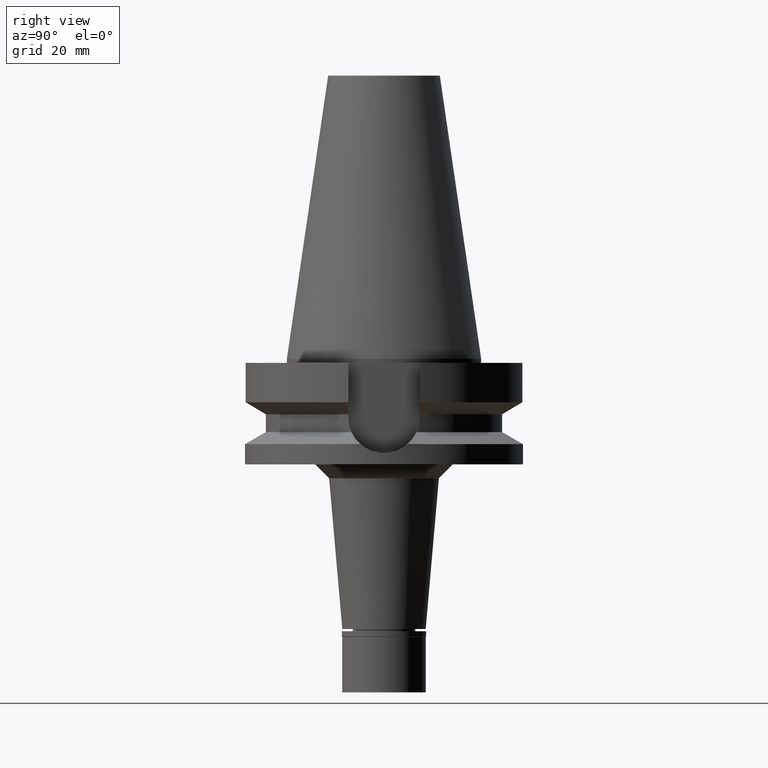
[diagram: clean part render]
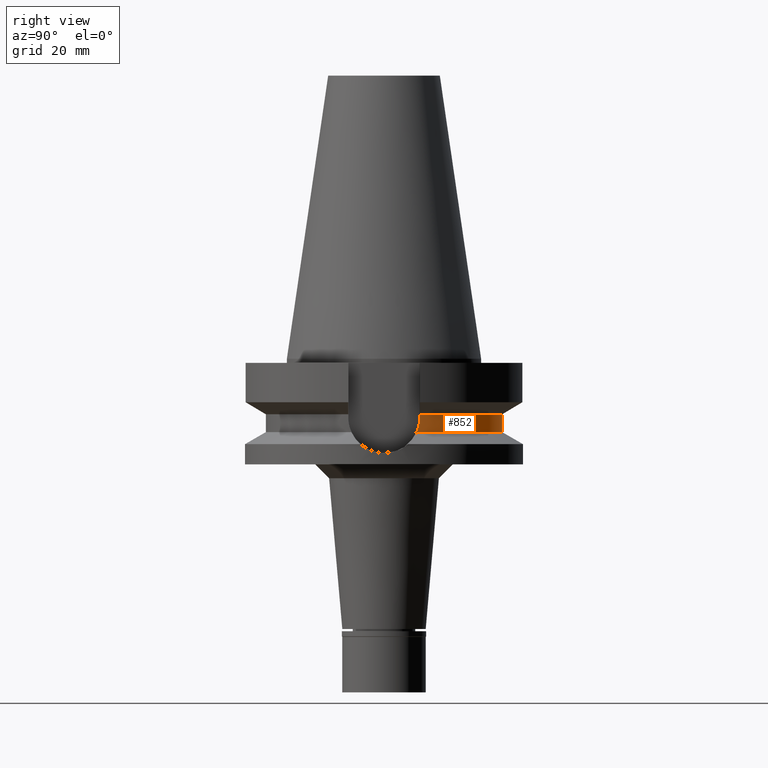
[diagram: same view with one face highlighted and labeled with its STEP entity id]
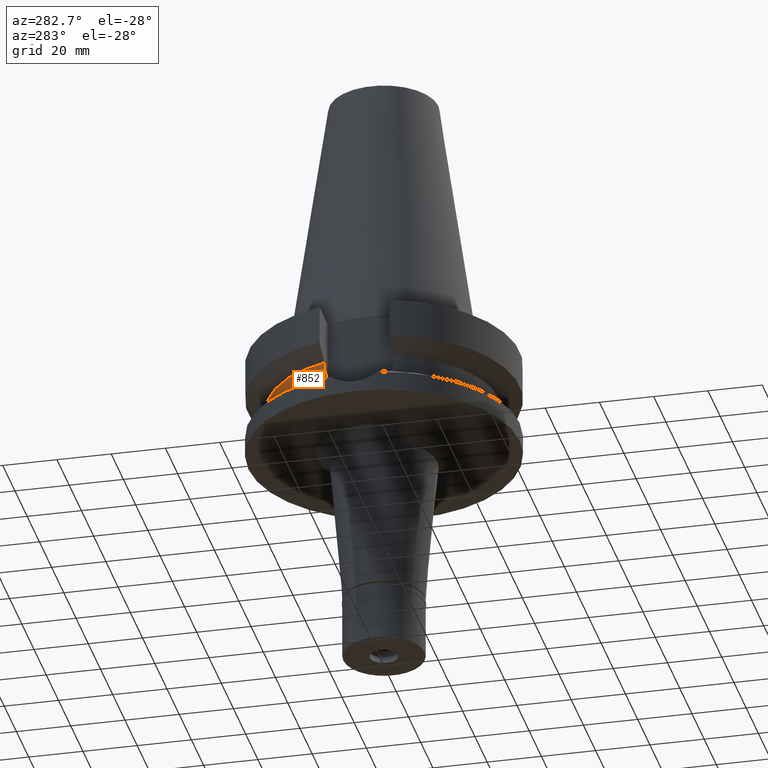
[diagram: same view with one face highlighted and labeled with its STEP entity id]
A machine part, right view. The second image highlights one B-rep face of the part: STEP entity #852.
A second angle (auxiliary view) of the same face is appended — the face is thin or edge-on in the first view.
In plain terms, the highlighted cylindrical surface (partial cylindrical patch) has radius 42.5 mm, axis along (0, 0, -1).
Its self-contained STEP definition (entity closure, byte-faithful):
#5 = CARTESIAN_POINT ( 'NONE',  ( -40.59736864107517107, 12.57412283048128643, -23.79851909554893652 ) ) ;
#31 = CARTESIAN_POINT ( 'NONE',  ( 40.51083188481999997, 12.84999999999999964, -21.14999999999999858 ) ) ;
#163 = B_SPLINE_CURVE_WITH_KNOTS ( 'NONE', 3,
 ( #2923, #245, #2434, #1686, #470, #2711, #732, #228, #1721, #2985, #5, #979, #2235, #490 ),
 .UNSPECIFIED., .F., .F.,
 ( 4, 2, 2, 1, 1, 2, 2, 4 ),
 ( 0.0000000000000000000, 0.2500000000000000000, 0.3750000000000008327, 0.4375000000000012212, 0.4687500000000014988, 0.4843750000000016653, 0.5000000000000017764, 1.000000000000000000 ),
 .UNSPECIFIED. ) ;
#166 = CIRCLE ( 'NONE', #634, 42.50000000000000000 ) ;
#172 = CARTESIAN_POINT ( 'NONE',  ( 40.51083188481999997, 12.84999999999999964, -21.14999999999999858 ) ) ;
#186 = CARTESIAN_POINT ( 'NONE',  ( 40.51083297732999711, 12.84999655576999977, -19.99284568674999818 ) ) ;
#228 = CARTESIAN_POINT ( 'NONE',  ( -40.58662608485432344, 12.60878154790449557, -23.62927549514129311 ) ) ;
#245 = CARTESIAN_POINT ( 'NONE',  ( -40.51083188481999287, 12.85000000000001741, -21.59154171183339699 ) ) ;
#292 = ORIENTED_EDGE ( 'NONE', *, *, #442, .F. ) ;
#326 = ORIENTED_EDGE ( 'NONE', *, *, #2646, .T. ) ;
#353 = VERTEX_POINT ( 'NONE', #2454 ) ;
#442 = EDGE_CURVE ( 'NONE', #599, #1636, #1991, .T. ) ;
#470 = CARTESIAN_POINT ( 'NONE',  ( -40.54944727710434904, 12.72806419699610814, -22.93049076238056827 ) ) ;
#480 = EDGE_CURVE ( 'NONE', #491, #1636, #2835, .T. ) ;
#490 = CARTESIAN_POINT ( 'NONE',  ( -40.85052569294000335, 11.72538061688000077, -26.40718074535000426 ) ) ;
#491 = VERTEX_POINT ( 'NONE', #1197 ) ;
#592 = CARTESIAN_POINT ( 'NONE',  ( 40.51083188481999997, 12.84999999999999964, -21.14999999999999858 ) ) ;
#599 = VERTEX_POINT ( 'NONE', #592 ) ;
#615 = CARTESIAN_POINT ( 'NONE',  ( -40.51083297902000169, 12.84999655042000022, -19.99284572777999713 ) ) ;
#633 = DIRECTION ( 'NONE',  ( 9.455979572065094889E-07, 2.981088891930031345E-06, -0.9999999999951095786 ) ) ;
#634 = AXIS2_PLACEMENT_3D ( 'NONE', #1607, #1653, #869 ) ;
#732 = CARTESIAN_POINT ( 'NONE',  ( -40.57496101843508995, 12.64633755876222132, -23.43369807929340709 ) ) ;
#737 = DIRECTION ( 'NONE',  ( 0.0000000000000000000, 0.0000000000000000000, -1.000000000000000000 ) ) ;
#829 = CARTESIAN_POINT ( 'NONE',  ( 40.66327695313657387, 12.35977177935063587, -24.67238797833628539 ) ) ;
#852 = ADVANCED_FACE ( 'NONE', ( #3140 ), #2602, .T. ) ;
#869 = DIRECTION ( 'NONE',  ( 0.0000000000000000000, 1.000000000000000000, 0.0000000000000000000 ) ) ;
#909 = CARTESIAN_POINT ( 'NONE',  ( 40.63719938804641174, 12.44499676302016233, -24.35261212845198742 ) ) ;
#925 = EDGE_CURVE ( 'NONE', #1428, #1558, #163, .T. ) ;
#934 = CARTESIAN_POINT ( 'NONE',  ( 0.0000000000000000000, 2.603048003927999965E-14, 112.5550000000000068 ) ) ;
#979 = CARTESIAN_POINT ( 'NONE',  ( -40.65435955981701710, 12.39001970624505411, -24.66361747048290098 ) ) ;
#1022 = AXIS2_PLACEMENT_3D ( 'NONE', #1976, #737, #1961 ) ;
#1024 = VECTOR ( 'NONE', #2959, 1000.000000000000114 ) ;
#1050 = ORIENTED_EDGE ( 'NONE', *, *, #925, .F. ) ;
#1068 = CARTESIAN_POINT ( 'NONE',  ( 40.85052569294000335, 11.72538061688000077, -26.40718074535000426 ) ) ;
#1120 = CARTESIAN_POINT ( 'NONE',  ( 40.74530522851000569, 12.08734613715847139, -25.53455770061882646 ) ) ;
#1166 = EDGE_CURVE ( 'NONE', #491, #1428, #2611, .T. ) ;
#1183 = AXIS2_PLACEMENT_3D ( 'NONE', #934, #1615, #1893 ) ;
#1197 = CARTESIAN_POINT ( 'NONE',  ( -40.51083188481999997, 12.84999999999999964, -19.99281925464999787 ) ) ;
#1393 = VECTOR ( 'NONE', #633, 999.9999999999998863 ) ;
#1428 = VERTEX_POINT ( 'NONE', #2629 ) ;
#1513 = CARTESIAN_POINT ( 'NONE',  ( 40.61156896389181270, 12.52821669071923338, -24.00856318992673266 ) ) ;
#1558 = VERTEX_POINT ( 'NONE', #1946 ) ;
#1607 = CARTESIAN_POINT ( 'NONE',  ( 0.0000000000000000000, 0.0000000000000000000, -26.40718074535000426 ) ) ;
#1615 = DIRECTION ( 'NONE',  ( 0.0000000000000000000, 0.0000000000000000000, -1.000000000000000000 ) ) ;
#1636 = VERTEX_POINT ( 'NONE', #186 ) ;
#1653 = DIRECTION ( 'NONE',  ( 0.0000000000000000000, 0.0000000000000000000, 1.000000000000000000 ) ) ;
#1681 = ORIENTED_EDGE ( 'NONE', *, *, #1166, .F. ) ;
#1686 = CARTESIAN_POINT ( 'NONE',  ( -40.54025313608426728, 12.75731810731581461, -22.70684014861738120 ) ) ;
#1721 = CARTESIAN_POINT ( 'NONE',  ( -40.59188398425018818, 12.59182459259059073, -23.71305796897122775 ) ) ;
#1893 = DIRECTION ( 'NONE',  ( 0.0000000000000000000, -1.000000000000000000, 0.0000000000000000000 ) ) ;
#1937 = CARTESIAN_POINT ( 'NONE',  ( 40.62482961095487610, 12.48525133054237379, -24.19329755004105564 ) ) ;
#1946 = CARTESIAN_POINT ( 'NONE',  ( -40.85052569294000335, 11.72538061688000077, -26.40718074535000426 ) ) ;
#1961 = DIRECTION ( 'NONE',  ( -0.9531960443486575674, 0.3023529411764863672, 0.0000000000000000000 ) ) ;
#1976 = CARTESIAN_POINT ( 'NONE',  ( 0.0000000000000000000, 1.006319759053999930E-14, -19.99281925464999787 ) ) ;
#1991 = LINE ( 'NONE', #31, #1024 ) ;
#2043 = CARTESIAN_POINT ( 'NONE',  ( 40.79434743163939459, 11.92110232363585531, -25.97065181133539369 ) ) ;
#2105 = EDGE_CURVE ( 'NONE', #353, #599, #2587, .T. ) ;
#2184 = CARTESIAN_POINT ( 'NONE',  ( 40.60613670648131546, 12.54578755583637495, -23.92964714798038628 ) ) ;
#2211 = EDGE_LOOP ( 'NONE', ( #1681, #3164, #292, #2536, #326, #1050 ) ) ;
#2235 = CARTESIAN_POINT ( 'NONE',  ( -40.73816957792608662, 12.11682261037261377, -25.53412604446632628 ) ) ;
#2434 = CARTESIAN_POINT ( 'NONE',  ( -40.51818719763605969, 12.82722225432294394, -22.03686830847679445 ) ) ;
#2454 = CARTESIAN_POINT ( 'NONE',  ( 40.85052569294000335, 11.72538061688000077, -26.40718074535000426 ) ) ;
#2536 = ORIENTED_EDGE ( 'NONE', *, *, #2105, .F. ) ;
#2587 = B_SPLINE_CURVE_WITH_KNOTS ( 'NONE', 3,
 ( #1068, #2043, #1120, #3037, #829, #909, #1937, #1513, #2184, #2726, #2954, #3116, #2933, #172 ),
 .UNSPECIFIED., .F., .F.,
 ( 4, 2, 2, 1, 1, 2, 2, 4 ),
 ( 0.0000000000000000000, 0.2500000000000199285, 0.3750000000000298650, 0.4375000000000346945, 0.4687500000000359157, 0.4843750000000358047, 0.5000000000000356382, 1.000000000000000000 ),
 .UNSPECIFIED. ) ;
#2602 = CYLINDRICAL_SURFACE ( 'NONE', #1183, 42.50000000000000000 ) ;
#2611 = LINE ( 'NONE', #615, #1393 ) ;
#2629 = CARTESIAN_POINT ( 'NONE',  ( -40.51083188481999997, 12.84999999999999964, -21.14999999999999858 ) ) ;
#2646 = EDGE_CURVE ( 'NONE', #353, #1558, #166, .T. ) ;
#2711 = CARTESIAN_POINT ( 'NONE',  ( -40.56599673094049763, 12.67509433839708954, -23.26596311456001231 ) ) ;
#2726 = CARTESIAN_POINT ( 'NONE',  ( 40.60257095199544608, 12.55731571366465182, -23.87709474180955738 ) ) ;
#2835 = CIRCLE ( 'NONE', #1022, 42.50000000000002132 ) ;
#2923 = CARTESIAN_POINT ( 'NONE',  ( -40.51083188481999997, 12.84999999999999964, -21.14999999999999858 ) ) ;
#2933 = CARTESIAN_POINT ( 'NONE',  ( 40.51083188481999997, 12.84999999999999964, -22.03308001790878023 ) ) ;
#2954 = CARTESIAN_POINT ( 'NONE',  ( 40.60092750940732031, 12.56262654778542931, -23.85254111937017640 ) ) ;
#2959 = DIRECTION ( 'NONE',  ( 9.441324481811226008E-07, -2.976468723670074156E-06, 0.9999999999951246776 ) ) ;
#2985 = CARTESIAN_POINT ( 'NONE',  ( -40.59544671389547688, 12.58032818125417052, -23.76890350620602987 ) ) ;
#3037 = CARTESIAN_POINT ( 'NONE',  ( 40.68244601107283387, 12.29666625012446346, -24.88710380514564235 ) ) ;
#3116 = CARTESIAN_POINT ( 'NONE',  ( 40.54025086427707691, 12.75862911299039659, -22.93149008167891267 ) ) ;
#3140 = FACE_OUTER_BOUND ( 'NONE', #2211, .T. ) ;
#3164 = ORIENTED_EDGE ( 'NONE', *, *, #480, .T. ) ;